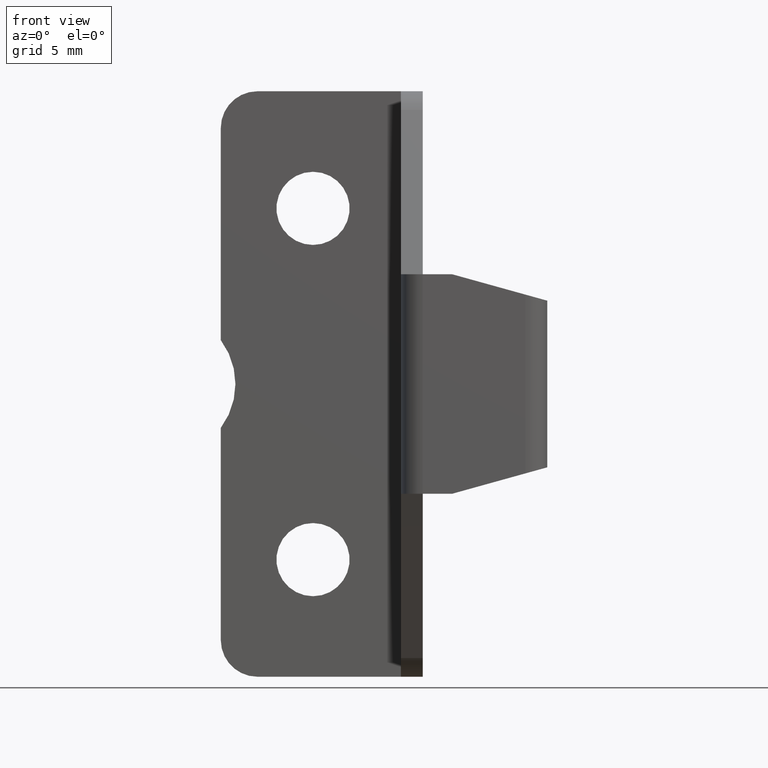
[diagram: clean part render]
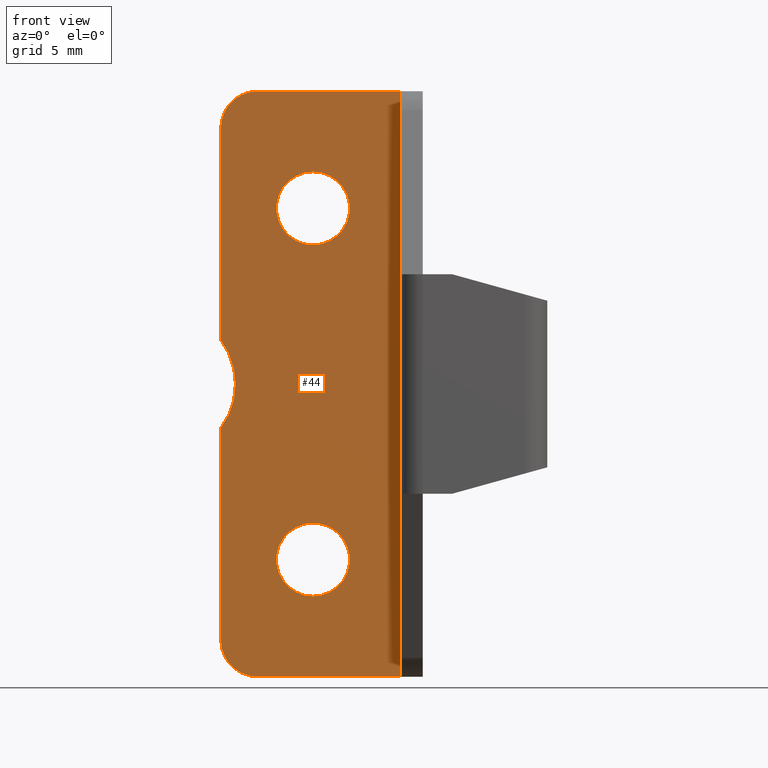
[diagram: same view with one face highlighted and labeled with its STEP entity id]
A machine part, front view. The second image highlights one B-rep face of the part: STEP entity #44.
In plain terms, the highlighted planar face has unit normal (0, -1, 0).
Its self-contained STEP definition (entity closure, byte-faithful):
#44=ADVANCED_FACE('',(#116,#117,#118),#115,.T.);
#115=PLANE('',#460);
#116=FACE_OUTER_BOUND('',#461,.T.);
#117=FACE_BOUND('',#462,.T.);
#118=FACE_BOUND('',#463,.T.);
#457=CARTESIAN_POINT('',(-1.22999880000E+00,-5.00000000000E-01,2.40000000000E+01));
#458=DIRECTION('',(0.00000000000E+00,-1.00000000000E+00,0.00000000000E+00));
#459=DIRECTION('',(0.00000000000E+00,0.00000000000E+00,-1.00000000000E+00));
#460=AXIS2_PLACEMENT_3D('',#457,#458,#459);
#461=EDGE_LOOP('',(#640,#641,#642,#643,#644,#645,#646,#647));
#462=EDGE_LOOP('',(#648,#649));
#463=EDGE_LOOP('',(#650,#651));
#640=ORIENTED_EDGE('',*,*,#830,.F.);
#641=ORIENTED_EDGE('',*,*,#826,.F.);
#642=ORIENTED_EDGE('',*,*,#831,.T.);
#643=ORIENTED_EDGE('',*,*,#832,.F.);
#644=ORIENTED_EDGE('',*,*,#833,.F.);
#645=ORIENTED_EDGE('',*,*,#834,.F.);
#646=ORIENTED_EDGE('',*,*,#822,.T.);
#647=ORIENTED_EDGE('',*,*,#835,.F.);
#648=ORIENTED_EDGE('',*,*,#836,.F.);
#649=ORIENTED_EDGE('',*,*,#837,.F.);
#650=ORIENTED_EDGE('',*,*,#838,.F.);
#651=ORIENTED_EDGE('',*,*,#839,.F.);
#822=EDGE_CURVE('',#965,#966,#967,.T.);
#826=EDGE_CURVE('',#993,#994,#995,.T.);
#830=EDGE_CURVE('',#994,#1021,#1022,.T.);
#831=EDGE_CURVE('',#993,#1028,#1029,.T.);
#832=EDGE_CURVE('',#1035,#1028,#1036,.T.);
#833=EDGE_CURVE('',#1042,#1035,#1043,.T.);
#834=EDGE_CURVE('',#965,#1042,#1049,.T.);
#835=EDGE_CURVE('',#1021,#966,#1055,.T.);
#836=EDGE_CURVE('',#1061,#1062,#1063,.T.);
#837=EDGE_CURVE('',#1062,#1061,#1069,.T.);
#838=EDGE_CURVE('',#1075,#1076,#1077,.T.);
#839=EDGE_CURVE('',#1076,#1075,#1083,.T.);
#965=VERTEX_POINT('',#1605);
#966=VERTEX_POINT('',#1606);
#967=CIRCLE('',#1610,2.50000000000E+00);
#993=VERTEX_POINT('',#1623);
#994=VERTEX_POINT('',#1624);
#995=LINE('',#1625,#1626);
#1021=VERTEX_POINT('',#1639);
#1022=CIRCLE('',#1643,5.00000000000E+00);
#1028=VERTEX_POINT('',#1644);
#1029=CIRCLE('',#1648,2.50000000000E+00);
#1035=VERTEX_POINT('',#1649);
#1036=LINE('',#1650,#1651);
#1042=VERTEX_POINT('',#1653);
#1043=LINE('',#1654,#1655);
#1049=LINE('',#1657,#1658);
#1055=LINE('',#1660,#1661);
#1061=VERTEX_POINT('',#1663);
#1062=VERTEX_POINT('',#1664);
#1063=CIRCLE('',#1668,2.50000000000E+00);
#1069=CIRCLE('',#1672,2.50000000000E+00);
#1075=VERTEX_POINT('',#1673);
#1076=VERTEX_POINT('',#1674);
#1077=CIRCLE('',#1678,2.50000000000E+00);
#1083=CIRCLE('',#1682,2.50000000000E+00);
#1605=CARTESIAN_POINT('',(2.50000000000E+00,-5.00000000000E-01,2.00000000000E+01));
#1606=CARTESIAN_POINT('',(0.00000000000E+00,-5.00000000000E-01,1.75000000000E+01));
#1607=CARTESIAN_POINT('',(2.50000000000E+00,-5.00000000000E-01,1.75000000000E+01));
#1608=DIRECTION('',(0.00000000000E+00,-1.00000000000E+00,0.00000000000E+00));
#1609=DIRECTION('',(-0.00000000000E+00,-0.00000000000E+00,1.00000000000E+00));
#1610=AXIS2_PLACEMENT_3D('',#1607,#1608,#1609);
#1623=CARTESIAN_POINT('',(0.00000000000E+00,-5.00000000000E-01,-1.75000000000E+01));
#1624=CARTESIAN_POINT('',(0.00000000000E+00,-4.99999999988E-01,-3.00000000000E+00));
#1625=CARTESIAN_POINT('',(0.00000000000E+00,-5.00000000000E-01,-1.75000000000E+01));
#1626=VECTOR('',#1627,1.45000000000E+01);
#1627=DIRECTION('',(0.00000000000E+00,0.00000000000E+00,1.00000000000E+00));
#1639=CARTESIAN_POINT('',(0.00000000000E+00,-4.99999999988E-01,3.00000000000E+00));
#1640=CARTESIAN_POINT('',(-4.00000000000E+00,-4.99999999988E-01,0.00000000000E+00));
#1641=DIRECTION('',(0.00000000000E+00,-1.00000000000E+00,0.00000000000E+00));
#1642=DIRECTION('',(-0.00000000000E+00,-0.00000000000E+00,1.00000000000E+00));
#1643=AXIS2_PLACEMENT_3D('',#1640,#1641,#1642);
#1644=CARTESIAN_POINT('',(2.50000000000E+00,-5.00000000000E-01,-2.00000000000E+01));
#1645=CARTESIAN_POINT('',(2.50000000000E+00,-5.00000000000E-01,-1.75000000000E+01));
#1646=DIRECTION('',(0.00000000000E+00,-1.00000000000E+00,0.00000000000E+00));
#1647=DIRECTION('',(-0.00000000000E+00,-0.00000000000E+00,1.00000000000E+00));
#1648=AXIS2_PLACEMENT_3D('',#1645,#1646,#1647);
#1649=CARTESIAN_POINT('',(1.22999880000E+01,-5.00000000000E-01,-2.00000000000E+01));
#1650=CARTESIAN_POINT('',(1.22999880000E+01,-5.00000000000E-01,-2.00000000000E+01));
#1651=VECTOR('',#1652,9.79998800000E+00);
#1652=DIRECTION('',(-1.00000000000E+00,0.00000000000E+00,0.00000000000E+00));
#1653=CARTESIAN_POINT('',(1.22999880000E+01,-5.00000000000E-01,2.00000000000E+01));
#1654=CARTESIAN_POINT('',(1.22999880000E+01,-5.00000000000E-01,2.00000000000E+01));
#1655=VECTOR('',#1656,4.00000000000E+01);
#1656=DIRECTION('',(0.00000000000E+00,0.00000000000E+00,-1.00000000000E+00));
#1657=CARTESIAN_POINT('',(2.50000000000E+00,-5.00000000000E-01,2.00000000000E+01));
#1658=VECTOR('',#1659,9.79998800000E+00);
#1659=DIRECTION('',(1.00000000000E+00,0.00000000000E+00,0.00000000000E+00));
#1660=CARTESIAN_POINT('',(0.00000000000E+00,-5.00000000000E-01,3.00000000000E+00));
#1661=VECTOR('',#1662,1.45000000000E+01);
#1662=DIRECTION('',(0.00000000000E+00,0.00000000000E+00,1.00000000000E+00));
#1663=CARTESIAN_POINT('',(6.29998800000E+00,-5.00000000000E-01,-9.50000000000E+00));
#1664=CARTESIAN_POINT('',(6.29998800000E+00,-5.00000000000E-01,-1.45000000000E+01));
#1665=CARTESIAN_POINT('',(6.29998800000E+00,-5.00000000000E-01,-1.20000000000E+01));
#1666=DIRECTION('',(0.00000000000E+00,-1.00000000000E+00,-0.00000000000E+00));
#1667=DIRECTION('',(-1.22460635382E-16,0.00000000000E+00,-1.00000000000E+00));
#1668=AXIS2_PLACEMENT_3D('',#1665,#1666,#1667);
#1669=CARTESIAN_POINT('',(6.29998800000E+00,-5.00000000000E-01,-1.20000000000E+01));
#1670=DIRECTION('',(0.00000000000E+00,-1.00000000000E+00,-0.00000000000E+00));
#1671=DIRECTION('',(-1.22460635382E-16,0.00000000000E+00,-1.00000000000E+00));
#1672=AXIS2_PLACEMENT_3D('',#1669,#1670,#1671);
#1673=CARTESIAN_POINT('',(6.29998800000E+00,-5.00000000000E-01,1.45000000000E+01));
#1674=CARTESIAN_POINT('',(6.29998800000E+00,-5.00000000000E-01,9.50000000000E+00));
#1675=CARTESIAN_POINT('',(6.29998800000E+00,-5.00000000000E-01,1.20000000000E+01));
#1676=DIRECTION('',(0.00000000000E+00,-1.00000000000E+00,-0.00000000000E+00));
#1677=DIRECTION('',(-1.22460635382E-16,0.00000000000E+00,-1.00000000000E+00));
#1678=AXIS2_PLACEMENT_3D('',#1675,#1676,#1677);
#1679=CARTESIAN_POINT('',(6.29998800000E+00,-5.00000000000E-01,1.20000000000E+01));
#1680=DIRECTION('',(0.00000000000E+00,-1.00000000000E+00,-0.00000000000E+00));
#1681=DIRECTION('',(-1.22460635382E-16,0.00000000000E+00,-1.00000000000E+00));
#1682=AXIS2_PLACEMENT_3D('',#1679,#1680,#1681);